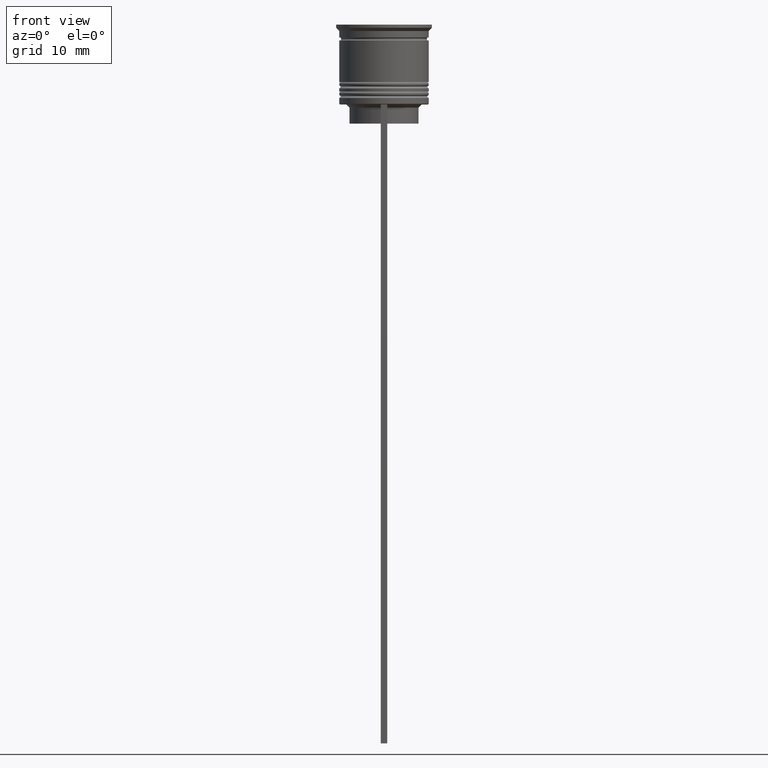
[diagram: clean part render]
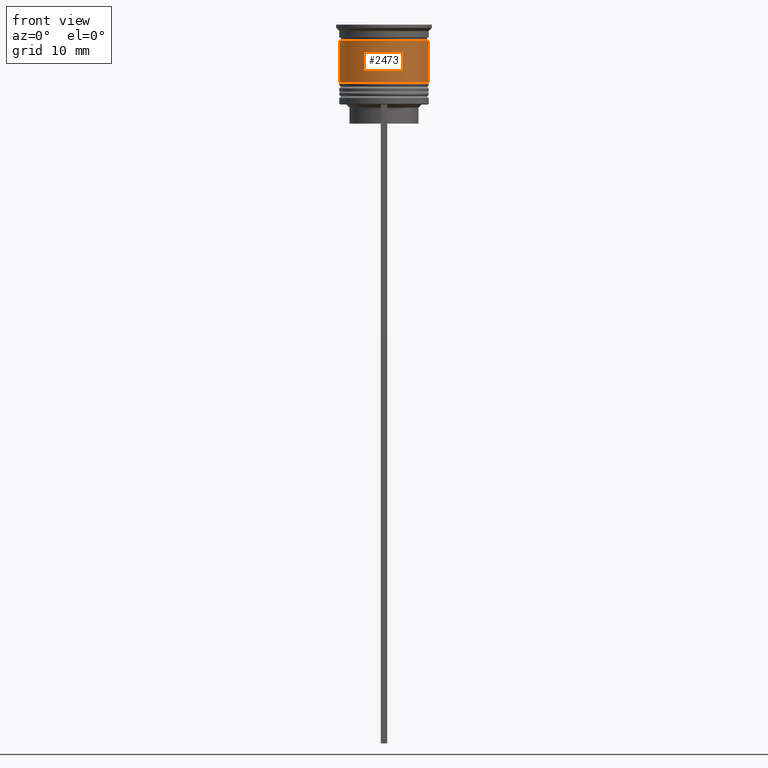
[diagram: same view with one face highlighted and labeled with its STEP entity id]
A machine part, front view. The second image highlights one B-rep face of the part: STEP entity #2473.
In plain terms, the highlighted cylindrical surface (partial cylindrical patch) has radius 7 mm, axis along (-0, -0, 1).
Its self-contained STEP definition (entity closure, byte-faithful):
#2 = VERTEX_POINT ( 'NONE', #2112 ) ;
#102 = ORIENTED_EDGE ( 'NONE', *, *, #1319, .F. ) ;
#108 = CIRCLE ( 'NONE', #1850, 6.999999999999997335 ) ;
#419 = ORIENTED_EDGE ( 'NONE', *, *, #1981, .T. ) ;
#566 = VERTEX_POINT ( 'NONE', #1995 ) ;
#664 = ORIENTED_EDGE ( 'NONE', *, *, #2471, .F. ) ;
#702 = DIRECTION ( 'NONE',  ( -0.000000000000000000, -0.000000000000000000, 1.000000000000000000 ) ) ;
#706 = DIRECTION ( 'NONE',  ( 1.000000000000000000, 0.000000000000000000, 0.000000000000000000 ) ) ;
#722 = AXIS2_PLACEMENT_3D ( 'NONE', #743, #2044, #706 ) ;
#743 = CARTESIAN_POINT ( 'NONE',  ( 0.000000000000000000, 0.000000000000000000, 0.000000000000000000 ) ) ;
#756 = VECTOR ( 'NONE', #866, 1000.000000000000000 ) ;
#796 = VECTOR ( 'NONE', #702, 1000.000000000000000 ) ;
#866 = DIRECTION ( 'NONE',  ( -0.000000000000000000, -0.000000000000000000, 1.000000000000000000 ) ) ;
#1017 = ORIENTED_EDGE ( 'NONE', *, *, #1522, .T. ) ;
#1023 = CARTESIAN_POINT ( 'NONE',  ( -6.999999999999999112, 8.572527594031472204E-16, 0.000000000000000000 ) ) ;
#1120 = CARTESIAN_POINT ( 'NONE',  ( 6.999999999999999112, 0.000000000000000000, 0.000000000000000000 ) ) ;
#1146 = DIRECTION ( 'NONE',  ( -0.000000000000000000, -0.000000000000000000, 1.000000000000000000 ) ) ;
#1172 = CIRCLE ( 'NONE', #1693, 7.000000000000000888 ) ;
#1302 = CARTESIAN_POINT ( 'NONE',  ( 0.000000000000000000, 0.000000000000000000, -9.000000000000001776 ) ) ;
#1319 = EDGE_CURVE ( 'NONE', #566, #2148, #2390, .T. ) ;
#1320 = VERTEX_POINT ( 'NONE', #1421 ) ;
#1421 = CARTESIAN_POINT ( 'NONE',  ( 7.000000000000000888, 0.000000000000000000, -9.000000000000001776 ) ) ;
#1515 = CARTESIAN_POINT ( 'NONE',  ( 0.000000000000000000, 0.000000000000000000, -2.500000000000000444 ) ) ;
#1522 = EDGE_CURVE ( 'NONE', #1320, #2, #2417, .T. ) ;
#1590 = CARTESIAN_POINT ( 'NONE',  ( -6.999999999999997335, 8.572527594031471218E-16, -2.500000000000000444 ) ) ;
#1685 = DIRECTION ( 'NONE',  ( -0.000000000000000000, -0.000000000000000000, 1.000000000000000000 ) ) ;
#1693 = AXIS2_PLACEMENT_3D ( 'NONE', #1302, #1685, #2441 ) ;
#1850 = AXIS2_PLACEMENT_3D ( 'NONE', #1515, #1146, #2224 ) ;
#1866 = CYLINDRICAL_SURFACE ( 'NONE', #722, 6.999999999999999112 ) ;
#1981 = EDGE_CURVE ( 'NONE', #566, #1320, #1172, .T. ) ;
#1995 = CARTESIAN_POINT ( 'NONE',  ( -7.000000000000000888, 8.572527594031474176E-16, -9.000000000000001776 ) ) ;
#2044 = DIRECTION ( 'NONE',  ( -0.000000000000000000, -0.000000000000000000, 1.000000000000000000 ) ) ;
#2094 = EDGE_LOOP ( 'NONE', ( #102, #419, #1017, #664 ) ) ;
#2112 = CARTESIAN_POINT ( 'NONE',  ( 6.999999999999997335, 0.000000000000000000, -2.500000000000000444 ) ) ;
#2148 = VERTEX_POINT ( 'NONE', #1590 ) ;
#2224 = DIRECTION ( 'NONE',  ( 1.000000000000000000, 0.000000000000000000, 0.000000000000000000 ) ) ;
#2280 = FACE_OUTER_BOUND ( 'NONE', #2094, .T. ) ;
#2390 = LINE ( 'NONE', #1023, #756 ) ;
#2417 = LINE ( 'NONE', #1120, #796 ) ;
#2441 = DIRECTION ( 'NONE',  ( 1.000000000000000000, 0.000000000000000000, 0.000000000000000000 ) ) ;
#2471 = EDGE_CURVE ( 'NONE', #2148, #2, #108, .T. ) ;
#2473 = ADVANCED_FACE ( 'NONE', ( #2280 ), #1866, .T. ) ;